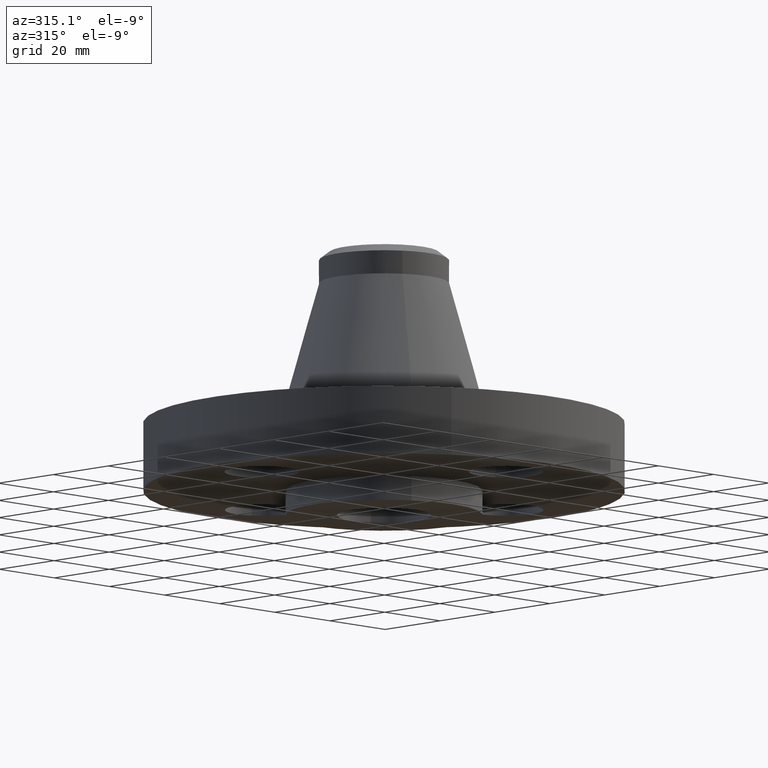
[diagram: clean part render]
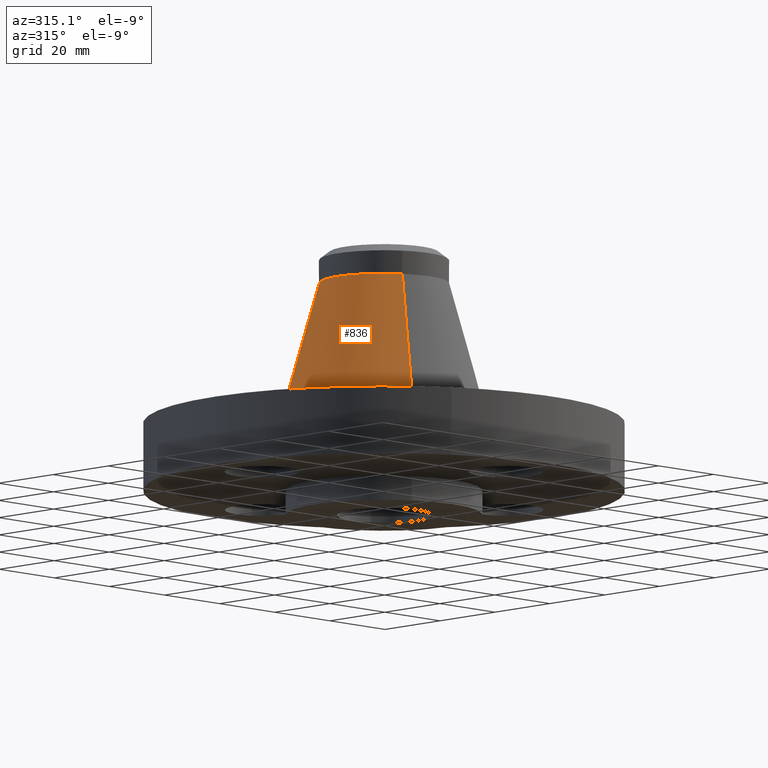
[diagram: same view with one face highlighted and labeled with its STEP entity id]
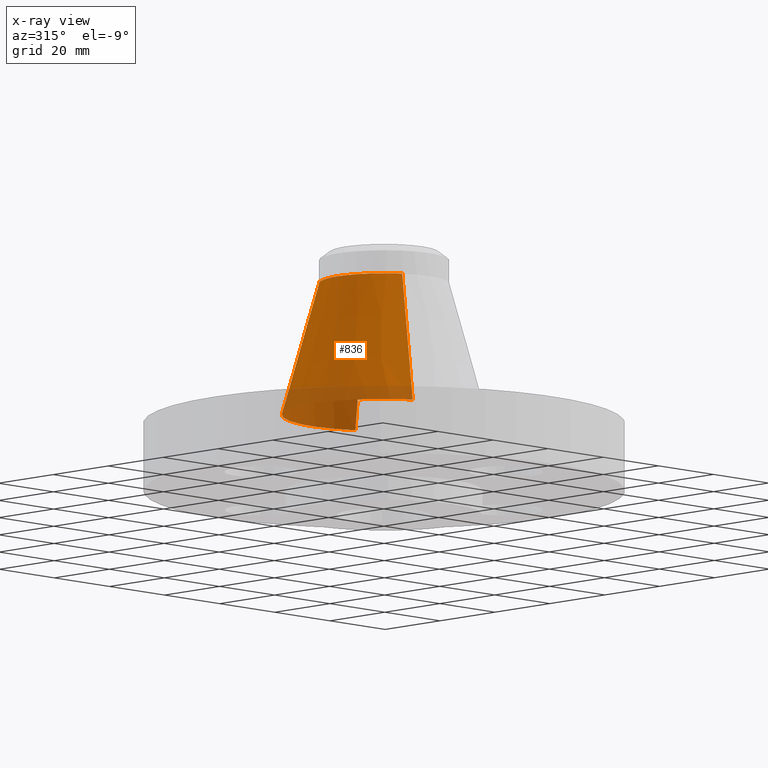
[diagram: x-ray of the same camera — body ghosted, the highlighted face saturated]
A machine part, auxiliary view. The second image highlights one B-rep face of the part: STEP entity #836.
The next image is the same camera in x-ray: the body ghosted, the highlighted face saturated — about 24% of this face is hidden behind the body in this view.
In plain terms, the highlighted conical surface has half-angle 15.576 deg.
Its self-contained STEP definition (entity closure, byte-faithful):
#648=AXIS2_PLACEMENT_3D('Circle Axis2P3D',#646,#647,$) ;
#809=AXIS2_PLACEMENT_3D('Cone Axis2P3D',#806,#807,#808) ;
#820=AXIS2_PLACEMENT_3D('Circle Axis2P3D',#818,#819,$) ;
#643=CARTESIAN_POINT('Vertex',(-0.496460113539,-0.908764142152,0.777777407987)) ;
#646=CARTESIAN_POINT('Axis2P3D Location',(0.,0.,0.777777407988)) ;
#650=CARTESIAN_POINT('Vertex',(0.496460113539,0.908764142152,0.777777407988)) ;
#806=CARTESIAN_POINT('Axis2P3D Location',(0.,0.,2.12492912712)) ;
#811=CARTESIAN_POINT('Line Origine',(-0.406440484509,-0.743984316499,1.45135326756)) ;
#815=CARTESIAN_POINT('Vertex',(-0.31642085548,-0.57920449085,2.12492912712)) ;
#818=CARTESIAN_POINT('Axis2P3D Location',(0.,0.,2.12492912712)) ;
#822=CARTESIAN_POINT('Vertex',(0.31642085548,0.57920449085,2.12492912712)) ;
#825=CARTESIAN_POINT('Line Origine',(0.406440484509,0.743984316499,1.45135326756)) ;
#647=DIRECTION('Axis2P3D Direction',(-0.,0.,-0.0393700787402)) ;
#807=DIRECTION('Axis2P3D Direction',(0.,0.,-0.0393700787402)) ;
#808=DIRECTION('Axis2P3D XDirection',(-0.0188750212049,-0.0345504945626,0.)) ;
#812=DIRECTION('Vector Direction',(-0.00506835089648,-0.00927755408533,-0.0379241599695)) ;
#819=DIRECTION('Axis2P3D Direction',(-0.,0.,-0.0393700787402)) ;
#826=DIRECTION('Vector Direction',(0.00506835089648,0.00927755408533,-0.0379241599695)) ;
#813=VECTOR('Line Direction',#812,0.0393700787402) ;
#827=VECTOR('Line Direction',#826,0.0393700787402) ;
#831=ORIENTED_EDGE('',*,*,#652,.F.) ;
#832=ORIENTED_EDGE('',*,*,#817,.T.) ;
#833=ORIENTED_EDGE('',*,*,#824,.T.) ;
#834=ORIENTED_EDGE('',*,*,#829,.F.) ;
#836=ADVANCED_FACE('PartBody',(#835),#810,.T.) ;
#649=CIRCLE('generated circle',#648,1.03553122135) ;
#821=CIRCLE('generated circle',#820,0.660000000003) ;
#810=CONICAL_SURFACE('Cone',#809,0.660000000003,0.271857936206) ;
#652=EDGE_CURVE('',#644,#651,#649,.T.) ;
#817=EDGE_CURVE('',#644,#816,#814,.F.) ;
#824=EDGE_CURVE('',#816,#823,#821,.T.) ;
#829=EDGE_CURVE('',#651,#823,#828,.F.) ;
#830=EDGE_LOOP('',(#831,#832,#833,#834)) ;
#835=FACE_OUTER_BOUND('',#830,.T.) ;
#814=LINE('Line',#811,#813) ;
#828=LINE('Line',#825,#827) ;
#644=VERTEX_POINT('',#643) ;
#651=VERTEX_POINT('',#650) ;
#816=VERTEX_POINT('',#815) ;
#823=VERTEX_POINT('',#822) ;